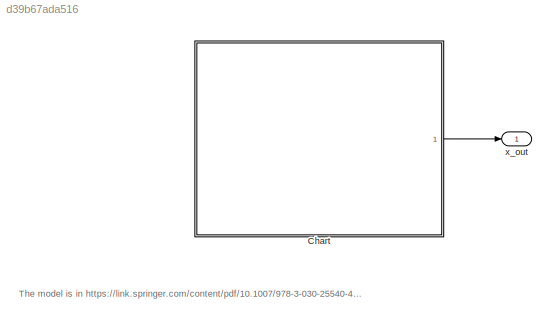
MODEL slx_d39b67ada516
KIND model
CONFIG AbsTol = auto
CONFIG EnableMultiTasking = off
CONFIG FixedStep = timeStepMax
CONFIG MaxStep = timeStepMax
CONFIG MinStep = auto
CONFIG RelTol = 1e-3
CONFIG SampleTimeConstraint = Unconstrained
CONFIG SolverName = FixedStepAuto
CONFIG StartTime = 0.0
CONFIG StopTime = timeFinal
WORKSPACE source: mxarray member
WORKSPACE x0 = 5
WORKSPACE y0 = 5
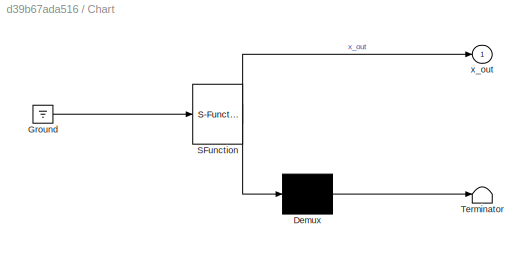
BLOCK [SubSystem] Chart
  ErrorFcn = Stateflow.Translate.translate
  PermitHierarchicalResolution = ExplicitOnly
  Ports = [0, 1]
  RequestExecContextInheritance = off
  SFBlockType = Chart
  TreatAsAtomicUnit = on
BLOCK [Demux] Chart/ Demux 
  Outputs = 1
  Ports = [1, 1]
BLOCK [Ground] Chart/ Ground 
BLOCK [S-Function] Chart/ SFunction 
  EnableBusSupport = on
  FunctionName = sf_sfun
  Parameters = a0
  PortCounts = [1 2]
  Ports = [1, 2]
  SFcnIsStateOwnerBlock = off
  SFunctionDeploymentMode = off
  Tag = Stateflow S-Function 3
BLOCK [Terminator] Chart/ Terminator 
BLOCK [Outport] Chart/x_out
BLOCK [Outport] x_out
  SignalName = xOut
ANNOTATION (root): The model is in https://link.springer.com/content/pdf/10.1007/978-3-030-25540-4_16.pdf
LINE Chart:1 -> x_out:1
CHART Chart states=5 transitions=11
  STATE_LABEL 'Early_Repolarization\ndu:  % derivatives\n  x_dot = -1.52;\nexit:\n      x_out=x;'
  STATE_LABEL 'Plateau\ndu:  % derivatives\n  x_dot = -0.76;\nexit:\n      x_out=x;'
  STATE_LABEL 'Upstroke\ndu:  % derivatives\n  x_dot = 130.02;\nexit:\n      x_out=x;'
  STATE_LABEL 'Stimulate_Resting\ndu:  % derivatives\n  x_dot = 0.0;\nexit:\n      x_out=x;'
  STATE_LABEL 'Final_Repolarization\ndu:  % derivatives\n  x_dot = -2.13;\nexit:\n      x_out=x;'
CHART  states=0 transitions=0
